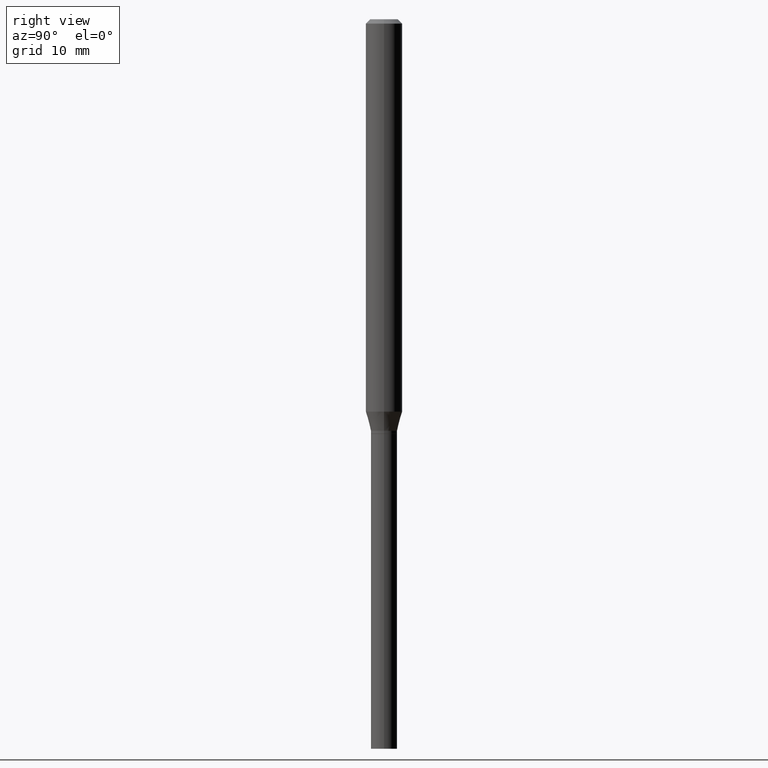
[diagram: clean part render]
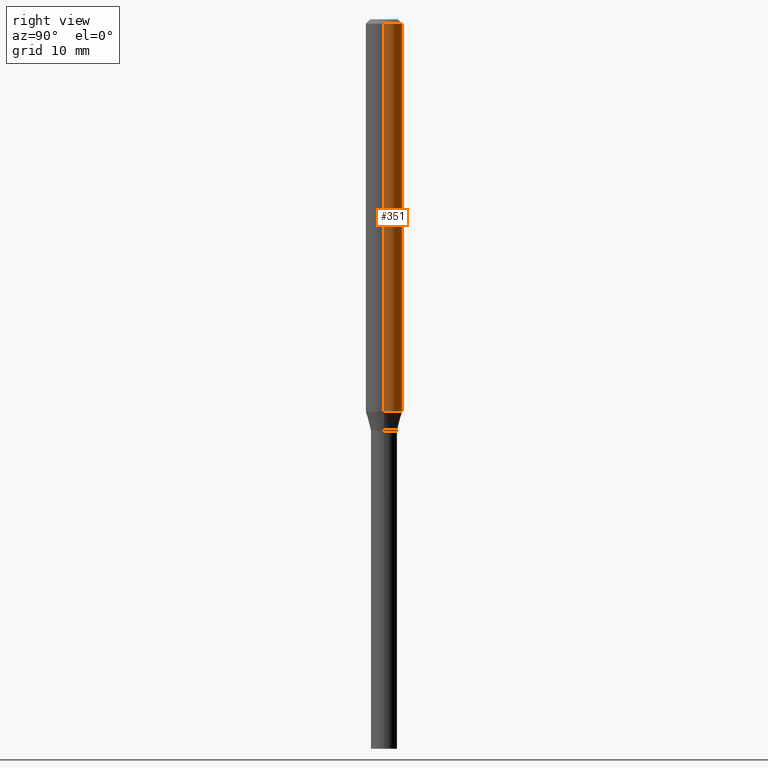
[diagram: same view with one face highlighted and labeled with its STEP entity id]
A machine part, right view. The second image highlights one B-rep face of the part: STEP entity #351.
In plain terms, the highlighted cylindrical surface (edge-blend (fillet) strip) has radius 1.5875 mm, axis along (-0, 0, 1).
Its self-contained STEP definition (entity closure, byte-faithful):
#4 = VERTEX_POINT ( 'NONE', #409 ) ;
#37 = DIRECTION ( 'NONE',  ( 1.000000000000000000, -6.982962677686266711E-15, 0.000000000000000000 ) ) ;
#46 = CARTESIAN_POINT ( 'NONE',  ( -0.06250000000000000000, -4.250867727289546507E-15, -1.344689110867543391 ) ) ;
#53 = CIRCLE ( 'NONE', #63, 0.06250000000000000000 ) ;
#59 = EDGE_CURVE ( 'NONE', #4, #464, #234, .T. ) ;
#63 = AXIS2_PLACEMENT_3D ( 'NONE', #211, #109, #37 ) ;
#66 = DIRECTION ( 'NONE',  ( -2.445468806185136877E-29, 3.491481338843145188E-15, 1.000000000000000000 ) ) ;
#109 = DIRECTION ( 'NONE',  ( -2.445468806185136597E-29, 3.491481338843145583E-15, 1.000000000000000000 ) ) ;
#131 = VERTEX_POINT ( 'NONE', #46 ) ;
#140 = DIRECTION ( 'NONE',  ( 1.000000000000000000, -6.982962677686266711E-15, 4.876176775795935793E-29 ) ) ;
#146 = DIRECTION ( 'NONE',  ( 1.000000000000000000, -6.982962677686262766E-15, 0.000000000000000000 ) ) ;
#152 = CARTESIAN_POINT ( 'NONE',  ( 0.06250000000000000000, -4.364351673553916694E-16, 3.047610484872459871E-30 ) ) ;
#181 = ORIENTED_EDGE ( 'NONE', *, *, #59, .F. ) ;
#211 = CARTESIAN_POINT ( 'NONE',  ( 3.668203209277705088E-31, -5.237222008264718399E-17, -0.01499999999999999944 ) ) ;
#228 = ORIENTED_EDGE ( 'NONE', *, *, #253, .T. ) ;
#234 = LINE ( 'NONE', #152, #249 ) ;
#238 = AXIS2_PLACEMENT_3D ( 'NONE', #382, #314, #140 ) ;
#249 = VECTOR ( 'NONE', #299, 39.37007874015748143 ) ;
#252 = DIRECTION ( 'NONE',  ( -2.445468806185136597E-29, 3.491481338843145583E-15, 1.000000000000000000 ) ) ;
#253 = EDGE_CURVE ( 'NONE', #131, #316, #452, .T. ) ;
#274 = CARTESIAN_POINT ( 'NONE',  ( -0.06250000000000000000, -1.929575368761065682E-15, -0.01499999999999999944 ) ) ;
#285 = CARTESIAN_POINT ( 'NONE',  ( 0.06250000000000000000, -4.888073874380388472E-16, -0.01499999999999999944 ) ) ;
#288 = EDGE_LOOP ( 'NONE', ( #387, #228, #337, #181 ) ) ;
#299 = DIRECTION ( 'NONE',  ( -2.445468806185136877E-29, 3.491481338843145188E-15, 1.000000000000000000 ) ) ;
#314 = DIRECTION ( 'NONE',  ( -2.445468806185136597E-29, 3.491481338843145583E-15, 1.000000000000000000 ) ) ;
#316 = VERTEX_POINT ( 'NONE', #274 ) ;
#321 = FACE_OUTER_BOUND ( 'NONE', #288, .T. ) ;
#323 = CIRCLE ( 'NONE', #390, 0.06250000000000000000 ) ;
#337 = ORIENTED_EDGE ( 'NONE', *, *, #418, .F. ) ;
#351 = ADVANCED_FACE ( 'NONE', ( #321 ), #455, .T. ) ;
#382 = CARTESIAN_POINT ( 'NONE',  ( 0.000000000000000000, 0.000000000000000000, 0.000000000000000000 ) ) ;
#387 = ORIENTED_EDGE ( 'NONE', *, *, #396, .T. ) ;
#390 = AXIS2_PLACEMENT_3D ( 'NONE', #425, #252, #146 ) ;
#396 = EDGE_CURVE ( 'NONE', #4, #131, #323, .T. ) ;
#409 = CARTESIAN_POINT ( 'NONE',  ( 0.06250000000000000000, -5.131392104495001581E-15, -1.344689110867543391 ) ) ;
#417 = CARTESIAN_POINT ( 'NONE',  ( -0.06250000000000000000, 4.440892098500626162E-16, -3.074334431409316114E-30 ) ) ;
#418 = EDGE_CURVE ( 'NONE', #464, #316, #53, .T. ) ;
#425 = CARTESIAN_POINT ( 'NONE',  ( 3.288395274643403706E-29, -4.694956937139609123E-15, -1.344689110867543391 ) ) ;
#441 = VECTOR ( 'NONE', #66, 39.37007874015748143 ) ;
#452 = LINE ( 'NONE', #417, #441 ) ;
#455 = CYLINDRICAL_SURFACE ( 'NONE', #238, 0.06250000000000000000 ) ;
#464 = VERTEX_POINT ( 'NONE', #285 ) ;